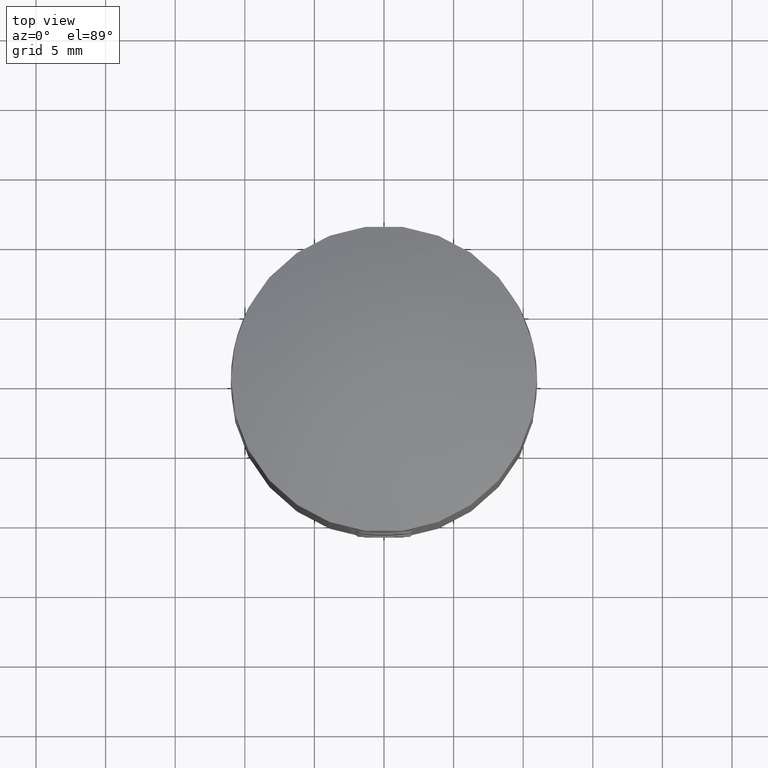
[diagram: clean part render]
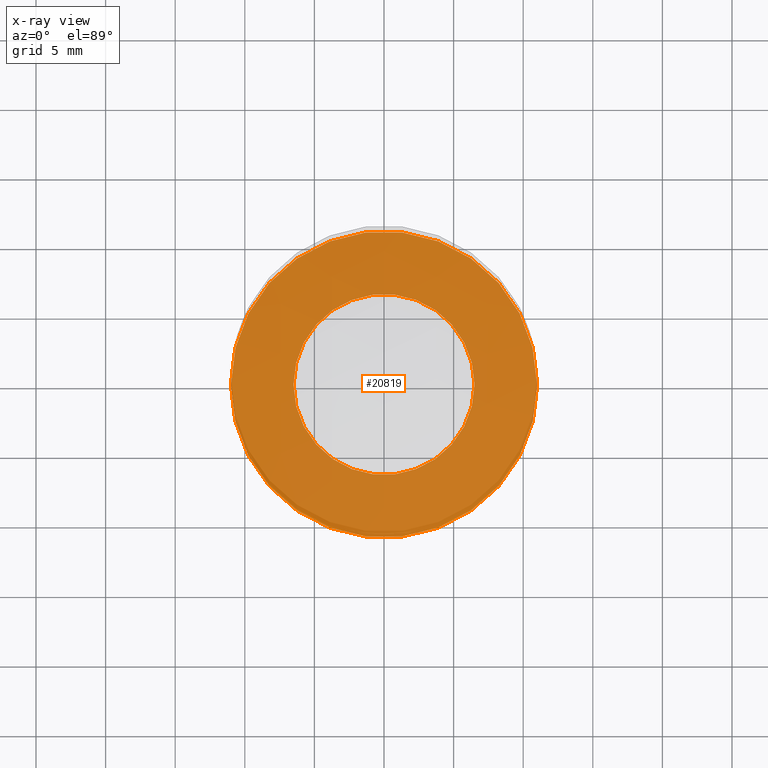
[diagram: x-ray — body ghosted, one internal face saturated and labeled with its STEP entity id]
A machine part, top view, then the same camera in x-ray: the body is ghosted and one INTERNAL B-rep face — a face not visible from any outside direction — is saturated and labeled: STEP entity #20819.
In plain terms, the highlighted planar face has unit normal (0, 0, 1).
Its self-contained STEP definition (entity closure, byte-faithful):
#1602 = CARTESIAN_POINT ( 'NONE',  ( 0.0000000000000000000, 0.0000000000000000000, 0.0000000000000000000 ) ) ;
#2802 = DIRECTION ( 'NONE',  ( -0.0000000000000000000, -0.0000000000000000000, 1.000000000000000000 ) ) ;
#3402 = DIRECTION ( 'NONE',  ( -0.0000000000000000000, -0.0000000000000000000, 1.000000000000000000 ) ) ;
#3629 = DIRECTION ( 'NONE',  ( 1.000000000000000000, 0.0000000000000000000, 0.0000000000000000000 ) ) ;
#4872 = CARTESIAN_POINT ( 'NONE',  ( 11.00000000000000000, 0.0000000000000000000, 0.0000000000000000000 ) ) ;
#5285 = EDGE_CURVE ( 'NONE', #20407, #20407, #8113, .T. ) ;
#5366 = ORIENTED_EDGE ( 'NONE', *, *, #5285, .F. ) ;
#8113 = CIRCLE ( 'NONE', #11537, 11.00000000000000000 ) ;
#8559 = FACE_OUTER_BOUND ( 'NONE', #16819, .T. ) ;
#8980 = CIRCLE ( 'NONE', #15243, 6.500000000000016900 ) ;
#11537 = AXIS2_PLACEMENT_3D ( 'NONE', #13183, #2802, #16652 ) ;
#11822 = DIRECTION ( 'NONE',  ( 0.0000000000000000000, -0.0000000000000000000, 1.000000000000000000 ) ) ;
#12283 = CARTESIAN_POINT ( 'NONE',  ( 6.500000000000016900, 0.0000000000000000000, 0.0000000000000000000 ) ) ;
#12723 = ORIENTED_EDGE ( 'NONE', *, *, #19658, .T. ) ;
#13183 = CARTESIAN_POINT ( 'NONE',  ( 0.0000000000000000000, 0.0000000000000000000, 0.0000000000000000000 ) ) ;
#14691 = AXIS2_PLACEMENT_3D ( 'NONE', #16893, #11822, #15234 ) ;
#15234 = DIRECTION ( 'NONE',  ( 1.000000000000000000, 0.0000000000000000000, 0.0000000000000000000 ) ) ;
#15243 = AXIS2_PLACEMENT_3D ( 'NONE', #1602, #3402, #3629 ) ;
#16652 = DIRECTION ( 'NONE',  ( 1.000000000000000000, 0.0000000000000000000, 0.0000000000000000000 ) ) ;
#16819 = EDGE_LOOP ( 'NONE', ( #5366 ) ) ;
#16893 = CARTESIAN_POINT ( 'NONE',  ( 0.0000000000000000000, 0.0000000000000000000, 0.0000000000000000000 ) ) ;
#16896 = VERTEX_POINT ( 'NONE', #12283 ) ;
#17039 = PLANE ( 'NONE',  #14691 ) ;
#19658 = EDGE_CURVE ( 'NONE', #16896, #16896, #8980, .T. ) ;
#20407 = VERTEX_POINT ( 'NONE', #4872 ) ;
#20819 = ADVANCED_FACE ( 'NONE', ( #22032, #8559 ), #17039, .F. ) ;
#21865 = EDGE_LOOP ( 'NONE', ( #12723 ) ) ;
#22032 = FACE_BOUND ( 'NONE', #21865, .T. ) ;